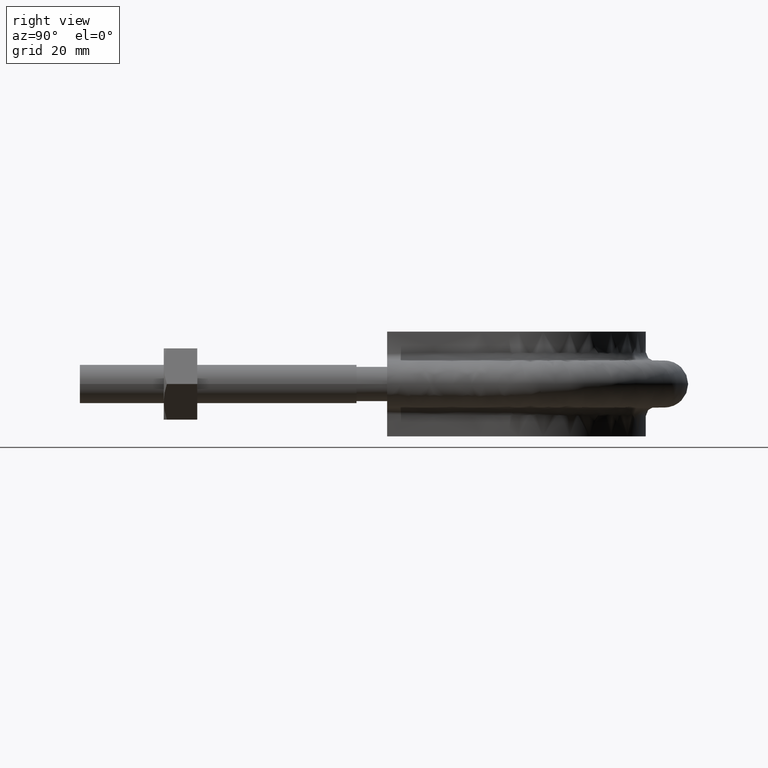
[diagram: clean part render]
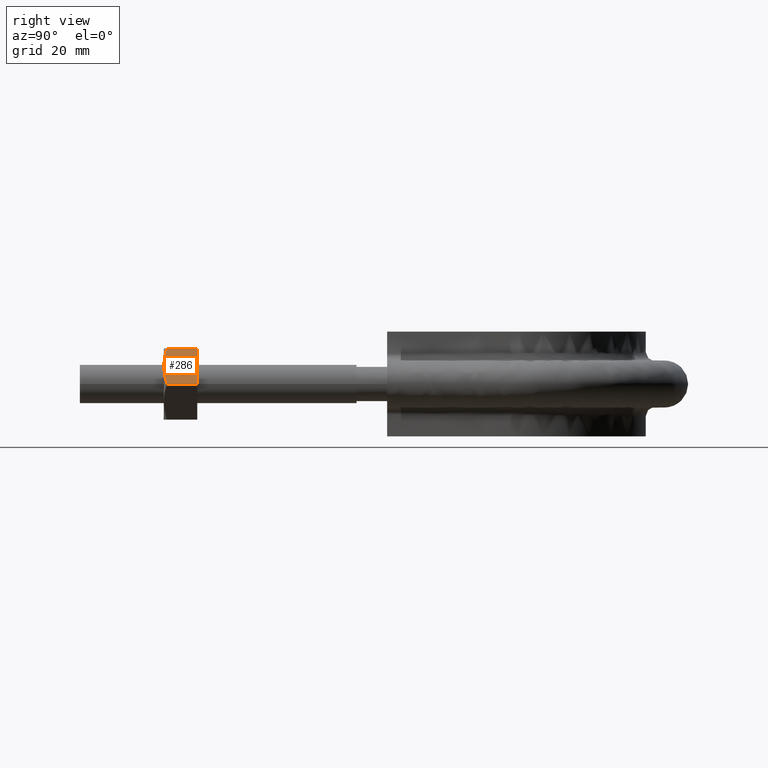
[diagram: same view with one face highlighted and labeled with its STEP entity id]
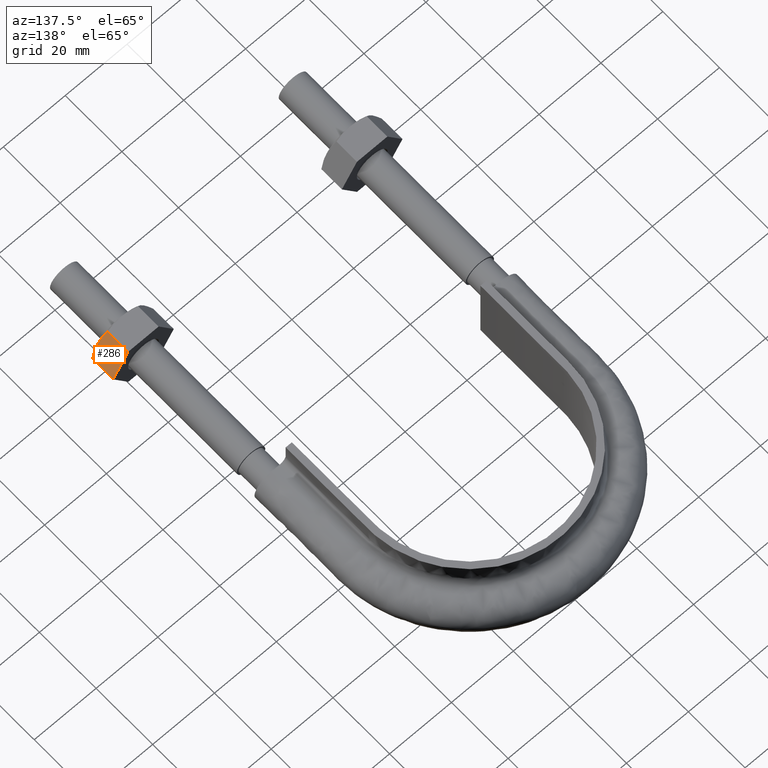
[diagram: same view with one face highlighted and labeled with its STEP entity id]
A machine part, right view. The second image highlights one B-rep face of the part: STEP entity #286.
A second angle (auxiliary view) of the same face is appended — the face is thin or edge-on in the first view.
In plain terms, the highlighted planar face has unit normal (-0.866, 0, -0.5).
Its self-contained STEP definition (entity closure, byte-faithful):
#286 = ADVANCED_FACE( '', ( #446 ), #447, .F. );
#446 = FACE_OUTER_BOUND( '', #1443, .T. );
#447 = PLANE( '', #1444 );
#1443 = EDGE_LOOP( '', ( #1929, #1930, #1931, #1932, #1933 ) );
#1444 = AXIS2_PLACEMENT_3D( '', #1934, #1935, #1936 );
#1929 = ORIENTED_EDGE( '', *, *, #2122, .F. );
#1930 = ORIENTED_EDGE( '', *, *, #2104, .F. );
#1931 = ORIENTED_EDGE( '', *, *, #2146, .F. );
#1932 = ORIENTED_EDGE( '', *, *, #2147, .F. );
#1933 = ORIENTED_EDGE( '', *, *, #2144, .F. );
#1934 = CARTESIAN_POINT( '', ( 41.9074772881085, 27.9999999999964, 8.50000000000193 ) );
#1935 = DIRECTION( '', ( -0.866025403784242, 1.81492883563574E-016, -0.500000000000340 ) );
#1936 = DIRECTION( '', ( -0.500000000000340, 2.01497578137893E-032, 0.866025403784242 ) );
#2104 = EDGE_CURVE( '', #2319, #2322, #2323, .T. );
#2122 = EDGE_CURVE( '', #2322, #2355, #2356, .T. );
#2144 = EDGE_CURVE( '', #2355, #2389, #2390, .T. );
#2146 = EDGE_CURVE( '', #2392, #2319, #2393, .F. );
#2147 = EDGE_CURVE( '', #2389, #2392, #2394, .T. );
#2319 = VERTEX_POINT( '', #2894 );
#2322 = VERTEX_POINT( '', #2897 );
#2323 = B_SPLINE_CURVE_WITH_KNOTS( '', 3, ( #2898, #2899, #2900, #2901, #2902, #2903 ), .UNSPECIFIED., .F., .F., ( 4, 2, 4 ), ( 1.73124927952298E-017, 0.00246745482903605, 0.00493490965807209 ), .UNSPECIFIED. );
#2355 = VERTEX_POINT( '', #2961 );
#2356 = B_SPLINE_CURVE_WITH_KNOTS( '', 3, ( #2962, #2963, #2964, #2965, #2966, #2967 ), .UNSPECIFIED., .F., .F., ( 4, 2, 4 ), ( 4.33680868994202E-018, 0.00246745482903604, 0.00493490965807208 ), .UNSPECIFIED. );
#2389 = VERTEX_POINT( '', #3036 );
#2390 = LINE( '', #3037, #3038 );
#2392 = VERTEX_POINT( '', #3040 );
#2393 = LINE( '', #3041, #3042 );
#2394 = LINE( '', #3043, #3044 );
#2894 = CARTESIAN_POINT( '', ( 46.7999656118192, 20.7505553499429, 0.0259616479052593 ) );
#2897 = CARTESIAN_POINT( '', ( 44.3612159321661, 19.9999999999964, 4.25000000000289 ) );
#2898 = CARTESIAN_POINT( '', ( 46.7999656118192, 20.7505553499429, 0.0259616479052434 ) );
#2899 = CARTESIAN_POINT( '', ( 46.4015017855061, 20.5215585493621, 0.716121240057185 ) );
#2900 = CARTESIAN_POINT( '', ( 45.9999375199986, 20.3328582843671, 1.41165095041958 ) );
#2901 = CARTESIAN_POINT( '', ( 45.1878690560095, 20.0716504305254, 2.81819478927192 ) );
#2902 = CARTESIAN_POINT( '', ( 44.7772989072617, 19.9999999999964, 3.52932314697348 ) );
#2903 = CARTESIAN_POINT( '', ( 44.3612159321661, 19.9999999999964, 4.25000000000289 ) );
#2961 = CARTESIAN_POINT( '', ( 41.9224662525130, 20.7505553499429, 8.47403835210053 ) );
#2962 = CARTESIAN_POINT( '', ( 44.3612159321661, 19.9999999999964, 4.25000000000288 ) );
#2963 = CARTESIAN_POINT( '', ( 43.9451329570704, 19.9999999999964, 4.97067685303229 ) );
#2964 = CARTESIAN_POINT( '', ( 43.5345628083227, 20.0716504305254, 5.68180521073386 ) );
#2965 = CARTESIAN_POINT( '', ( 42.7224943443335, 20.3328582843671, 7.08834904958620 ) );
#2966 = CARTESIAN_POINT( '', ( 42.3209300788261, 20.5215585493621, 7.78387875994858 ) );
#2967 = CARTESIAN_POINT( '', ( 41.9224662525130, 20.7505553499429, 8.47403835210052 ) );
#3036 = CARTESIAN_POINT( '', ( 41.9224662525130, 27.9999999999964, 8.47403835210053 ) );
#3037 = CARTESIAN_POINT( '', ( 41.9224662525130, 27.9999999999964, 8.47403835210053 ) );
#3038 = VECTOR( '', #3271, 1000.00000000000 );
#3040 = CARTESIAN_POINT( '', ( 46.7999656118192, 27.9999999999964, 0.0259616479052756 ) );
#3041 = CARTESIAN_POINT( '', ( 46.7999656118192, 27.9999999999964, 0.0259616479052760 ) );
#3042 = VECTOR( '', #3275, 1000.00000000000 );
#3043 = CARTESIAN_POINT( '', ( 39.4612159321628, 27.9999999999964, 12.7370489570885 ) );
#3044 = VECTOR( '', #3276, 1000.00000000000 );
#3271 = DIRECTION( '', ( 2.44921270764475E-016, 1.00000000000000, -6.12303176911192E-017 ) );
#3275 = DIRECTION( '', ( 2.44921270764475E-016, 1.00000000000000, -6.12303176911192E-017 ) );
#3276 = DIRECTION( '', ( 0.500000000000340, -1.75487645984610E-016, -0.866025403784242 ) );